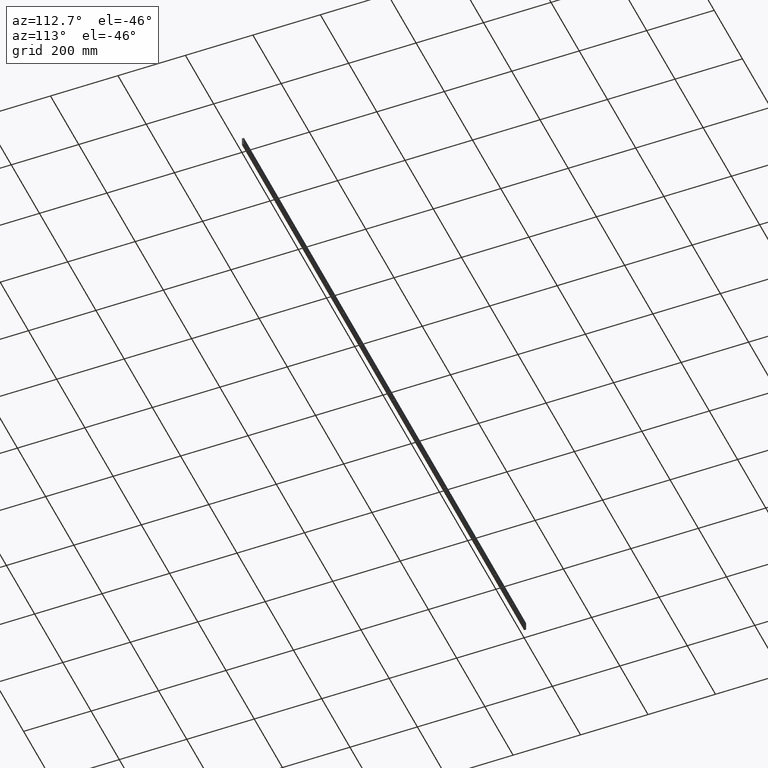
[diagram: clean part render]
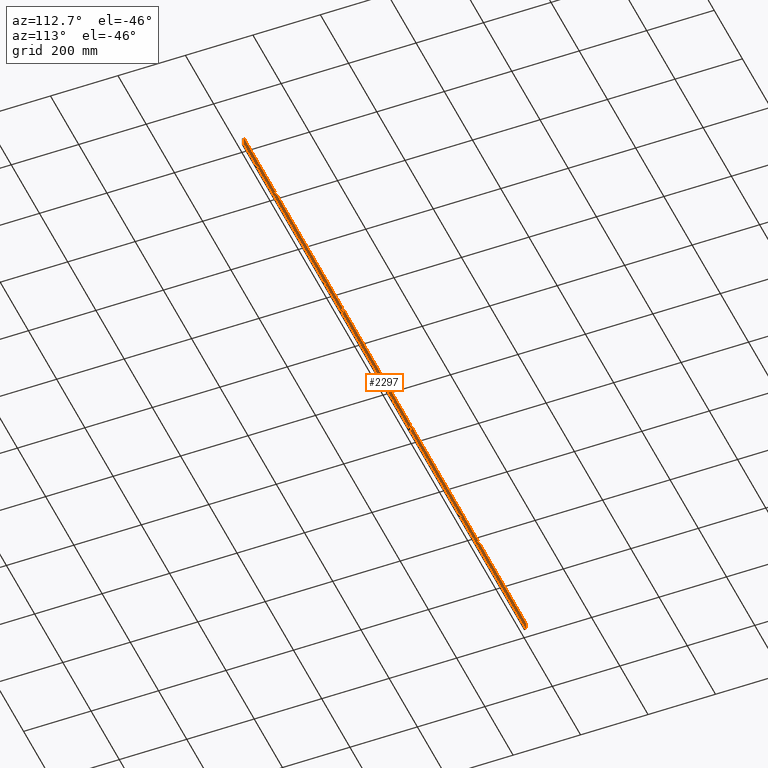
[diagram: same view with one face highlighted and labeled with its STEP entity id]
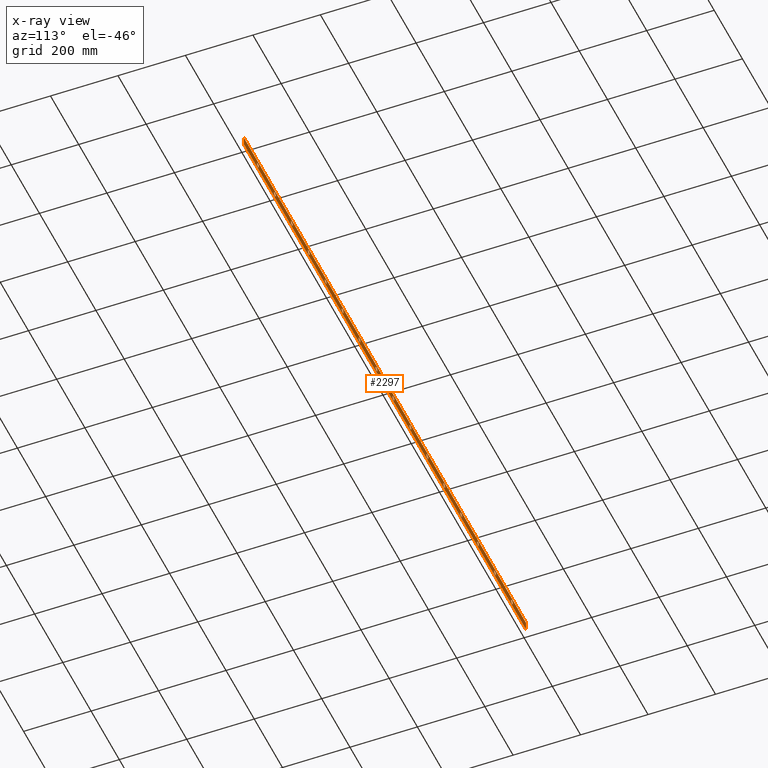
[diagram: x-ray of the same camera — body ghosted, the highlighted face saturated]
A machine part, auxiliary view. The second image highlights one B-rep face of the part: STEP entity #2297.
The next image is the same camera in x-ray: the body ghosted, the highlighted face saturated — about 0% of this face is hidden behind the body in this view.
In plain terms, the highlighted planar face has unit normal (0, -1, 0).
Its self-contained STEP definition (entity closure, byte-faithful):
#27 = FACE_BOUND ( 'NONE', #857, .T. ) ;
#46 = EDGE_CURVE ( 'NONE', #3328, #5961, #6632, .T. ) ;
#53 = VECTOR ( 'NONE', #2476, 1000.000000000000000 ) ;
#87 = DIRECTION ( 'NONE',  ( -1.000000000000000000, -0.0000000000000000000, -0.0000000000000000000 ) ) ;
#93 = VERTEX_POINT ( 'NONE', #770 ) ;
#100 = EDGE_CURVE ( 'NONE', #1768, #2930, #3909, .T. ) ;
#116 = ORIENTED_EDGE ( 'NONE', *, *, #1107, .T. ) ;
#139 = CIRCLE ( 'NONE', #4264, 6.500000000000019500 ) ;
#225 = DIRECTION ( 'NONE',  ( 0.0000000000000000000, 1.000000000000000000, 0.0000000000000000000 ) ) ;
#236 = CARTESIAN_POINT ( 'NONE',  ( 819.9999999999997700, 6.000000000000000000, -5.999999999999981300 ) ) ;
#246 = CARTESIAN_POINT ( 'NONE',  ( 0.0000000000000000000, 6.000000000000000000, -25.00000000000000000 ) ) ;
#321 = ORIENTED_EDGE ( 'NONE', *, *, #1002, .F. ) ;
#336 = DIRECTION ( 'NONE',  ( 0.0000000000000000000, 0.0000000000000000000, 1.000000000000000000 ) ) ;
#344 = DIRECTION ( 'NONE',  ( 0.0000000000000000000, 1.000000000000000000, 0.0000000000000000000 ) ) ;
#352 = CARTESIAN_POINT ( 'NONE',  ( 1059.999999999999500, 6.000000000000000000, -12.50000000000000000 ) ) ;
#370 = CARTESIAN_POINT ( 'NONE',  ( 339.9999999999998900, 6.000000000000000000, -12.50000000000000000 ) ) ;
#384 = DIRECTION ( 'NONE',  ( 0.0000000000000000000, -0.0000000000000000000, -1.000000000000000000 ) ) ;
#385 = ORIENTED_EDGE ( 'NONE', *, *, #2962, .F. ) ;
#389 = DIRECTION ( 'NONE',  ( 0.0000000000000000000, -1.000000000000000000, 0.0000000000000000000 ) ) ;
#395 = VERTEX_POINT ( 'NONE', #236 ) ;
#407 = PLANE ( 'NONE',  #5279 ) ;
#411 = DIRECTION ( 'NONE',  ( 0.0000000000000000000, 0.0000000000000000000, 1.000000000000000000 ) ) ;
#412 = DIRECTION ( 'NONE',  ( 0.0000000000000000000, 0.0000000000000000000, 1.000000000000000000 ) ) ;
#438 = AXIS2_PLACEMENT_3D ( 'NONE', #3950, #540, #4504 ) ;
#493 = EDGE_LOOP ( 'NONE', ( #2845, #1249 ) ) ;
#504 = CARTESIAN_POINT ( 'NONE',  ( 939.9999999999996600, 6.000000000000000000, -12.50000000000000000 ) ) ;
#506 = DIRECTION ( 'NONE',  ( 0.0000000000000000000, 1.000000000000000000, 0.0000000000000000000 ) ) ;
#513 = DIRECTION ( 'NONE',  ( 0.0000000000000000000, 1.000000000000000000, 0.0000000000000000000 ) ) ;
#515 = CARTESIAN_POINT ( 'NONE',  ( 0.0000000000000000000, 6.000000000000000000, 0.0000000000000000000 ) ) ;
#540 = DIRECTION ( 'NONE',  ( 0.0000000000000000000, 1.000000000000000000, 0.0000000000000000000 ) ) ;
#567 = CARTESIAN_POINT ( 'NONE',  ( 1539.999999999999500, 6.000000000000000000, -12.50000000000000000 ) ) ;
#616 = CARTESIAN_POINT ( 'NONE',  ( 219.9999999999999700, 6.000000000000000000, -5.999999999999985800 ) ) ;
#623 = EDGE_LOOP ( 'NONE', ( #5476, #4720 ) ) ;
#697 = EDGE_CURVE ( 'NONE', #1467, #6374, #5454, .T. ) ;
#730 = CIRCLE ( 'NONE', #735, 6.500000000000019500 ) ;
#735 = AXIS2_PLACEMENT_3D ( 'NONE', #1571, #1566, #1560 ) ;
#766 = EDGE_CURVE ( 'NONE', #5259, #6254, #6026, .T. ) ;
#770 = CARTESIAN_POINT ( 'NONE',  ( 1659.999999999999500, 6.000000000000000000, -18.99999999999990800 ) ) ;
#771 = CIRCLE ( 'NONE', #2661, 6.500000000000135000 ) ;
#823 = DIRECTION ( 'NONE',  ( 0.0000000000000000000, 1.000000000000000000, 0.0000000000000000000 ) ) ;
#826 = CIRCLE ( 'NONE', #2837, 6.500000000000015100 ) ;
#857 = EDGE_LOOP ( 'NONE', ( #6366, #385 ) ) ;
#884 = CARTESIAN_POINT ( 'NONE',  ( 579.9999999999998900, 6.000000000000000000, -19.00000000000002100 ) ) ;
#891 = DIRECTION ( 'NONE',  ( 0.0000000000000000000, 1.000000000000000000, 0.0000000000000000000 ) ) ;
#902 = CARTESIAN_POINT ( 'NONE',  ( 939.9999999999996600, 6.000000000000000000, -5.999999999999981300 ) ) ;
#916 = CIRCLE ( 'NONE', #438, 6.499999999999903200 ) ;
#934 = VERTEX_POINT ( 'NONE', #6029 ) ;
#955 = DIRECTION ( 'NONE',  ( 0.0000000000000000000, 0.0000000000000000000, 1.000000000000000000 ) ) ;
#975 = AXIS2_PLACEMENT_3D ( 'NONE', #3694, #3143, #3120 ) ;
#984 = CARTESIAN_POINT ( 'NONE',  ( 2000.000000000000000, 6.000000000000000000, -25.00000000000000000 ) ) ;
#1002 = EDGE_CURVE ( 'NONE', #2229, #1741, #2263, .T. ) ;
#1024 = AXIS2_PLACEMENT_3D ( 'NONE', #5821, #5816, #5815 ) ;
#1055 = VERTEX_POINT ( 'NONE', #5767 ) ;
#1084 = DIRECTION ( 'NONE',  ( 0.0000000000000000000, 0.0000000000000000000, 1.000000000000000000 ) ) ;
#1107 = EDGE_CURVE ( 'NONE', #4089, #2016, #3412, .T. ) ;
#1161 = EDGE_CURVE ( 'NONE', #1442, #3338, #5940, .T. ) ;
#1196 = FACE_BOUND ( 'NONE', #1437, .T. ) ;
#1216 = CARTESIAN_POINT ( 'NONE',  ( 1659.999999999999500, 6.000000000000000000, -12.50000000000000000 ) ) ;
#1232 = EDGE_LOOP ( 'NONE', ( #3253, #2812 ) ) ;
#1237 = AXIS2_PLACEMENT_3D ( 'NONE', #4207, #823, #4763 ) ;
#1249 = ORIENTED_EDGE ( 'NONE', *, *, #5286, .F. ) ;
#1259 = EDGE_CURVE ( 'NONE', #6254, #5259, #3998, .T. ) ;
#1310 = ORIENTED_EDGE ( 'NONE', *, *, #6931, .F. ) ;
#1311 = EDGE_CURVE ( 'NONE', #2466, #93, #6712, .T. ) ;
#1358 = CARTESIAN_POINT ( 'NONE',  ( 939.9999999999996600, 6.000000000000000000, -19.00000000000002100 ) ) ;
#1369 = FACE_BOUND ( 'NONE', #1232, .T. ) ;
#1416 = CARTESIAN_POINT ( 'NONE',  ( 1779.999999999999300, 6.000000000000000000, -5.999999999999865900 ) ) ;
#1435 = CARTESIAN_POINT ( 'NONE',  ( 1779.999999999999300, 6.000000000000000000, -12.50000000000000000 ) ) ;
#1437 = EDGE_LOOP ( 'NONE', ( #1854, #3242 ) ) ;
#1442 = VERTEX_POINT ( 'NONE', #4399 ) ;
#1467 = VERTEX_POINT ( 'NONE', #4266 ) ;
#1474 = VERTEX_POINT ( 'NONE', #4256 ) ;
#1549 = FACE_BOUND ( 'NONE', #6341, .T. ) ;
#1560 = DIRECTION ( 'NONE',  ( 0.0000000000000000000, 0.0000000000000000000, 1.000000000000000000 ) ) ;
#1563 = ORIENTED_EDGE ( 'NONE', *, *, #100, .F. ) ;
#1566 = DIRECTION ( 'NONE',  ( 0.0000000000000000000, 1.000000000000000000, 0.0000000000000000000 ) ) ;
#1571 = CARTESIAN_POINT ( 'NONE',  ( 819.9999999999997700, 6.000000000000000000, -12.50000000000000000 ) ) ;
#1630 = EDGE_CURVE ( 'NONE', #1741, #2229, #826, .T. ) ;
#1681 = ORIENTED_EDGE ( 'NONE', *, *, #2869, .F. ) ;
#1695 = EDGE_CURVE ( 'NONE', #3338, #1442, #3529, .T. ) ;
#1726 = ORIENTED_EDGE ( 'NONE', *, *, #1695, .F. ) ;
#1741 = VERTEX_POINT ( 'NONE', #3108 ) ;
#1754 = EDGE_CURVE ( 'NONE', #2016, #2578, #6234, .T. ) ;
#1768 = VERTEX_POINT ( 'NONE', #3047 ) ;
#1798 = DIRECTION ( 'NONE',  ( 0.0000000000000000000, 0.0000000000000000000, 1.000000000000000000 ) ) ;
#1854 = ORIENTED_EDGE ( 'NONE', *, *, #3309, .F. ) ;
#1937 = CARTESIAN_POINT ( 'NONE',  ( 0.0000000000000000000, 6.000000000000000000, 0.0000000000000000000 ) ) ;
#1939 = EDGE_CURVE ( 'NONE', #2930, #1768, #5738, .T. ) ;
#2008 = AXIS2_PLACEMENT_3D ( 'NONE', #6250, #3000, #4159 ) ;
#2016 = VERTEX_POINT ( 'NONE', #1937 ) ;
#2027 = DIRECTION ( 'NONE',  ( 0.0000000000000000000, 0.0000000000000000000, 1.000000000000000000 ) ) ;
#2067 = ORIENTED_EDGE ( 'NONE', *, *, #6813, .F. ) ;
#2105 = ORIENTED_EDGE ( 'NONE', *, *, #1754, .T. ) ;
#2118 = CARTESIAN_POINT ( 'NONE',  ( 1539.999999999999500, 6.000000000000000000, -6.000000000000097700 ) ) ;
#2126 = EDGE_CURVE ( 'NONE', #395, #2965, #730, .T. ) ;
#2131 = CARTESIAN_POINT ( 'NONE',  ( 1779.999999999999300, 6.000000000000000000, -12.50000000000000000 ) ) ;
#2147 = CARTESIAN_POINT ( 'NONE',  ( 699.9999999999997700, 6.000000000000000000, -5.999999999999981300 ) ) ;
#2166 = CARTESIAN_POINT ( 'NONE',  ( 2000.000000000000000, 6.000000000000000000, 0.0000000000000000000 ) ) ;
#2179 = VERTEX_POINT ( 'NONE', #984 ) ;
#2196 = DIRECTION ( 'NONE',  ( 0.0000000000000000000, 0.0000000000000000000, 1.000000000000000000 ) ) ;
#2205 = DIRECTION ( 'NONE',  ( 0.0000000000000000000, 1.000000000000000000, 0.0000000000000000000 ) ) ;
#2207 = CARTESIAN_POINT ( 'NONE',  ( 699.9999999999997700, 6.000000000000000000, -19.00000000000002100 ) ) ;
#2208 = CARTESIAN_POINT ( 'NONE',  ( 1419.999999999999500, 6.000000000000000000, -12.50000000000000000 ) ) ;
#2227 = CIRCLE ( 'NONE', #2348, 6.500000000000135000 ) ;
#2229 = VERTEX_POINT ( 'NONE', #616 ) ;
#2243 = ORIENTED_EDGE ( 'NONE', *, *, #3048, .F. ) ;
#2263 = CIRCLE ( 'NONE', #1024, 6.500000000000015100 ) ;
#2287 = CIRCLE ( 'NONE', #3297, 6.500000000000015100 ) ;
#2297 = ADVANCED_FACE ( 'NONE', ( #3087, #6145, #27, #5813, #4363, #1549, #2916, #1369, #7065, #5659, #4184, #2739, #1196, #6893, #5471, #4022, #2558 ), #407, .F. ) ;
#2305 = EDGE_CURVE ( 'NONE', #934, #3195, #5315, .T. ) ;
#2348 = AXIS2_PLACEMENT_3D ( 'NONE', #1435, #5354, #2027 ) ;
#2398 = EDGE_CURVE ( 'NONE', #2179, #4089, #4792, .T. ) ;
#2441 = EDGE_CURVE ( 'NONE', #3195, #934, #4620, .T. ) ;
#2466 = VERTEX_POINT ( 'NONE', #4893 ) ;
#2476 = DIRECTION ( 'NONE',  ( -0.0000000000000000000, -0.0000000000000000000, -1.000000000000000000 ) ) ;
#2518 = CARTESIAN_POINT ( 'NONE',  ( 1299.999999999999500, 6.000000000000000000, -12.50000000000000000 ) ) ;
#2546 = VERTEX_POINT ( 'NONE', #2147 ) ;
#2556 = ORIENTED_EDGE ( 'NONE', *, *, #4124, .F. ) ;
#2558 = FACE_BOUND ( 'NONE', #3662, .T. ) ;
#2560 = CIRCLE ( 'NONE', #3884, 6.500000000000019500 ) ;
#2578 = VERTEX_POINT ( 'NONE', #2166 ) ;
#2597 = EDGE_LOOP ( 'NONE', ( #4300, #6879 ) ) ;
#2661 = AXIS2_PLACEMENT_3D ( 'NONE', #3269, #7056, #3813 ) ;
#2669 = VERTEX_POINT ( 'NONE', #2799 ) ;
#2675 = EDGE_CURVE ( 'NONE', #1474, #1055, #2287, .T. ) ;
#2685 = DIRECTION ( 'NONE',  ( 0.0000000000000000000, 0.0000000000000000000, 1.000000000000000000 ) ) ;
#2693 = DIRECTION ( 'NONE',  ( 0.0000000000000000000, 1.000000000000000000, 0.0000000000000000000 ) ) ;
#2708 = CARTESIAN_POINT ( 'NONE',  ( 1419.999999999999500, 6.000000000000000000, -12.50000000000000000 ) ) ;
#2716 = DIRECTION ( 'NONE',  ( 0.0000000000000000000, 0.0000000000000000000, 1.000000000000000000 ) ) ;
#2739 = FACE_BOUND ( 'NONE', #5718, .T. ) ;
#2799 = CARTESIAN_POINT ( 'NONE',  ( 1299.999999999999500, 6.000000000000000000, -5.999999999999865900 ) ) ;
#2812 = ORIENTED_EDGE ( 'NONE', *, *, #1259, .F. ) ;
#2837 = AXIS2_PLACEMENT_3D ( 'NONE', #3535, #3527, #3519 ) ;
#2845 = ORIENTED_EDGE ( 'NONE', *, *, #4509, .F. ) ;
#2852 = CARTESIAN_POINT ( 'NONE',  ( 1179.999999999999800, 6.000000000000000000, -18.99999999999990800 ) ) ;
#2869 = EDGE_CURVE ( 'NONE', #6374, #1467, #4105, .T. ) ;
#2911 = EDGE_CURVE ( 'NONE', #5961, #3328, #916, .T. ) ;
#2916 = FACE_BOUND ( 'NONE', #4577, .T. ) ;
#2920 = CARTESIAN_POINT ( 'NONE',  ( 819.9999999999997700, 6.000000000000000000, -12.50000000000000000 ) ) ;
#2930 = VERTEX_POINT ( 'NONE', #7195 ) ;
#2945 = LINE ( 'NONE', #5758, #53 ) ;
#2962 = EDGE_CURVE ( 'NONE', #7087, #6060, #5073, .T. ) ;
#2965 = VERTEX_POINT ( 'NONE', #5719 ) ;
#2997 = VERTEX_POINT ( 'NONE', #1358 ) ;
#3000 = DIRECTION ( 'NONE',  ( 0.0000000000000000000, 1.000000000000000000, 0.0000000000000000000 ) ) ;
#3047 = CARTESIAN_POINT ( 'NONE',  ( 1419.999999999999500, 6.000000000000000000, -18.99999999999990800 ) ) ;
#3048 = EDGE_CURVE ( 'NONE', #2669, #5254, #3601, .T. ) ;
#3071 = DIRECTION ( 'NONE',  ( 1.000000000000000000, 0.0000000000000000000, 0.0000000000000000000 ) ) ;
#3076 = CARTESIAN_POINT ( 'NONE',  ( 0.0000000000000000000, 6.000000000000000000, 0.0000000000000000000 ) ) ;
#3078 = DIRECTION ( 'NONE',  ( 0.0000000000000000000, 0.0000000000000000000, 1.000000000000000000 ) ) ;
#3087 = FACE_BOUND ( 'NONE', #5507, .T. ) ;
#3088 = CARTESIAN_POINT ( 'NONE',  ( 1299.999999999999500, 6.000000000000000000, -19.00000000000013500 ) ) ;
#3108 = CARTESIAN_POINT ( 'NONE',  ( 219.9999999999999700, 6.000000000000000000, -19.00000000000001800 ) ) ;
#3120 = DIRECTION ( 'NONE',  ( 0.0000000000000000000, 0.0000000000000000000, 1.000000000000000000 ) ) ;
#3143 = DIRECTION ( 'NONE',  ( 0.0000000000000000000, 1.000000000000000000, 0.0000000000000000000 ) ) ;
#3173 = VECTOR ( 'NONE', #3071, 1000.000000000000000 ) ;
#3182 = CARTESIAN_POINT ( 'NONE',  ( 1899.999999999999500, 6.000000000000000000, -5.999999999999865900 ) ) ;
#3195 = VERTEX_POINT ( 'NONE', #7096 ) ;
#3206 = DIRECTION ( 'NONE',  ( 0.0000000000000000000, 1.000000000000000000, 0.0000000000000000000 ) ) ;
#3213 = CIRCLE ( 'NONE', #6080, 6.500000000000019500 ) ;
#3238 = VERTEX_POINT ( 'NONE', #2207 ) ;
#3242 = ORIENTED_EDGE ( 'NONE', *, *, #2126, .F. ) ;
#3253 = ORIENTED_EDGE ( 'NONE', *, *, #766, .F. ) ;
#3269 = CARTESIAN_POINT ( 'NONE',  ( 1899.999999999999500, 6.000000000000000000, -12.50000000000000000 ) ) ;
#3284 = ORIENTED_EDGE ( 'NONE', *, *, #5381, .F. ) ;
#3297 = AXIS2_PLACEMENT_3D ( 'NONE', #6628, #3388, #7164 ) ;
#3309 = EDGE_CURVE ( 'NONE', #2965, #395, #2560, .T. ) ;
#3328 = VERTEX_POINT ( 'NONE', #6197 ) ;
#3338 = VERTEX_POINT ( 'NONE', #6758 ) ;
#3342 = VECTOR ( 'NONE', #87, 1000.000000000000000 ) ;
#3358 = DIRECTION ( 'NONE',  ( 0.0000000000000000000, 1.000000000000000000, 0.0000000000000000000 ) ) ;
#3388 = DIRECTION ( 'NONE',  ( 0.0000000000000000000, 1.000000000000000000, 0.0000000000000000000 ) ) ;
#3390 = DIRECTION ( 'NONE',  ( 0.0000000000000000000, 0.0000000000000000000, 1.000000000000000000 ) ) ;
#3394 = DIRECTION ( 'NONE',  ( 0.0000000000000000000, 1.000000000000000000, 0.0000000000000000000 ) ) ;
#3400 = ORIENTED_EDGE ( 'NONE', *, *, #1939, .F. ) ;
#3401 = CARTESIAN_POINT ( 'NONE',  ( 459.9999999999998300, 6.000000000000000000, -12.50000000000000000 ) ) ;
#3412 = LINE ( 'NONE', #5451, #6285 ) ;
#3467 = AXIS2_PLACEMENT_3D ( 'NONE', #370, #4341, #955 ) ;
#3478 = CIRCLE ( 'NONE', #6768, 6.499999999999903200 ) ;
#3480 = DIRECTION ( 'NONE',  ( 0.0000000000000000000, 0.0000000000000000000, 1.000000000000000000 ) ) ;
#3507 = AXIS2_PLACEMENT_3D ( 'NONE', #567, #506, #411 ) ;
#3519 = DIRECTION ( 'NONE',  ( 0.0000000000000000000, 0.0000000000000000000, 1.000000000000000000 ) ) ;
#3527 = DIRECTION ( 'NONE',  ( 0.0000000000000000000, 1.000000000000000000, 0.0000000000000000000 ) ) ;
#3529 = CIRCLE ( 'NONE', #5044, 6.500000000000015100 ) ;
#3535 = CARTESIAN_POINT ( 'NONE',  ( 219.9999999999999700, 6.000000000000000000, -12.50000000000000000 ) ) ;
#3562 = ORIENTED_EDGE ( 'NONE', *, *, #5868, .F. ) ;
#3601 = CIRCLE ( 'NONE', #1237, 6.500000000000135000 ) ;
#3619 = EDGE_LOOP ( 'NONE', ( #1563, #3400 ) ) ;
#3631 = CARTESIAN_POINT ( 'NONE',  ( 100.0000000000000000, 6.000000000000000000, -19.00000000000001800 ) ) ;
#3641 = CARTESIAN_POINT ( 'NONE',  ( 1179.999999999999800, 6.000000000000000000, -6.000000000000097700 ) ) ;
#3652 = CARTESIAN_POINT ( 'NONE',  ( 1899.999999999999500, 6.000000000000000000, -12.50000000000000000 ) ) ;
#3662 = EDGE_LOOP ( 'NONE', ( #2067, #5809 ) ) ;
#3694 = CARTESIAN_POINT ( 'NONE',  ( 1059.999999999999500, 6.000000000000000000, -12.50000000000000000 ) ) ;
#3699 = AXIS2_PLACEMENT_3D ( 'NONE', #5305, #5303, #5300 ) ;
#3723 = CIRCLE ( 'NONE', #5370, 6.500000000000135000 ) ;
#3739 = ORIENTED_EDGE ( 'NONE', *, *, #2675, .F. ) ;
#3813 = DIRECTION ( 'NONE',  ( 0.0000000000000000000, 0.0000000000000000000, 1.000000000000000000 ) ) ;
#3834 = DIRECTION ( 'NONE',  ( 0.0000000000000000000, 1.000000000000000000, 0.0000000000000000000 ) ) ;
#3884 = AXIS2_PLACEMENT_3D ( 'NONE', #2920, #6715, #3480 ) ;
#3909 = CIRCLE ( 'NONE', #4216, 6.499999999999903200 ) ;
#3921 = CARTESIAN_POINT ( 'NONE',  ( 579.9999999999998900, 6.000000000000000000, -12.50000000000000000 ) ) ;
#3950 = CARTESIAN_POINT ( 'NONE',  ( 1539.999999999999500, 6.000000000000000000, -12.50000000000000000 ) ) ;
#3972 = CIRCLE ( 'NONE', #6541, 6.500000000000019500 ) ;
#3998 = CIRCLE ( 'NONE', #5532, 6.500000000000016000 ) ;
#4022 = FACE_BOUND ( 'NONE', #623, .T. ) ;
#4089 = VERTEX_POINT ( 'NONE', #4703 ) ;
#4105 = CIRCLE ( 'NONE', #5841, 6.500000000000019500 ) ;
#4124 = EDGE_CURVE ( 'NONE', #5254, #2669, #3723, .T. ) ;
#4157 = ORIENTED_EDGE ( 'NONE', *, *, #697, .F. ) ;
#4159 = DIRECTION ( 'NONE',  ( 0.0000000000000000000, 0.0000000000000000000, 1.000000000000000000 ) ) ;
#4176 = AXIS2_PLACEMENT_3D ( 'NONE', #7081, #3834, #412 ) ;
#4184 = FACE_BOUND ( 'NONE', #4392, .T. ) ;
#4194 = AXIS2_PLACEMENT_3D ( 'NONE', #6948, #6940, #6923 ) ;
#4196 = DIRECTION ( 'NONE',  ( 0.0000000000000000000, 0.0000000000000000000, 1.000000000000000000 ) ) ;
#4207 = CARTESIAN_POINT ( 'NONE',  ( 1299.999999999999500, 6.000000000000000000, -12.50000000000000000 ) ) ;
#4216 = AXIS2_PLACEMENT_3D ( 'NONE', #2708, #2693, #2685 ) ;
#4222 = CIRCLE ( 'NONE', #4458, 6.499999999999903200 ) ;
#4256 = CARTESIAN_POINT ( 'NONE',  ( 339.9999999999998900, 6.000000000000000000, -19.00000000000001800 ) ) ;
#4264 = AXIS2_PLACEMENT_3D ( 'NONE', #4281, #891, #4843 ) ;
#4266 = CARTESIAN_POINT ( 'NONE',  ( 579.9999999999998900, 6.000000000000000000, -5.999999999999981300 ) ) ;
#4280 = EDGE_CURVE ( 'NONE', #6876, #2997, #3213, .T. ) ;
#4281 = CARTESIAN_POINT ( 'NONE',  ( 699.9999999999997700, 6.000000000000000000, -12.50000000000000000 ) ) ;
#4300 = ORIENTED_EDGE ( 'NONE', *, *, #7173, .F. ) ;
#4341 = DIRECTION ( 'NONE',  ( 0.0000000000000000000, 1.000000000000000000, 0.0000000000000000000 ) ) ;
#4362 = AXIS2_PLACEMENT_3D ( 'NONE', #3652, #225, #4196 ) ;
#4363 = FACE_BOUND ( 'NONE', #2597, .T. ) ;
#4392 = EDGE_LOOP ( 'NONE', ( #3739, #1310 ) ) ;
#4399 = CARTESIAN_POINT ( 'NONE',  ( 459.9999999999998300, 6.000000000000000000, -5.999999999999985800 ) ) ;
#4405 = ORIENTED_EDGE ( 'NONE', *, *, #6600, .T. ) ;
#4458 = AXIS2_PLACEMENT_3D ( 'NONE', #6608, #3358, #7136 ) ;
#4461 = ORIENTED_EDGE ( 'NONE', *, *, #2441, .F. ) ;
#4470 = DIRECTION ( 'NONE',  ( 0.0000000000000000000, 1.000000000000000000, 0.0000000000000000000 ) ) ;
#4477 = DIRECTION ( 'NONE',  ( 0.0000000000000000000, 0.0000000000000000000, 1.000000000000000000 ) ) ;
#4504 = DIRECTION ( 'NONE',  ( 0.0000000000000000000, 0.0000000000000000000, 1.000000000000000000 ) ) ;
#4509 = EDGE_CURVE ( 'NONE', #6218, #6389, #771, .T. ) ;
#4577 = EDGE_LOOP ( 'NONE', ( #6224, #321 ) ) ;
#4620 = CIRCLE ( 'NONE', #975, 6.499999999999903200 ) ;
#4703 = CARTESIAN_POINT ( 'NONE',  ( 0.0000000000000000000, 6.000000000000000000, -25.00000000000000000 ) ) ;
#4720 = ORIENTED_EDGE ( 'NONE', *, *, #2911, .F. ) ;
#4732 = CARTESIAN_POINT ( 'NONE',  ( 100.0000000000000000, 6.000000000000000000, -5.999999999999984900 ) ) ;
#4763 = DIRECTION ( 'NONE',  ( 0.0000000000000000000, 0.0000000000000000000, 1.000000000000000000 ) ) ;
#4792 = LINE ( 'NONE', #246, #3342 ) ;
#4795 = ORIENTED_EDGE ( 'NONE', *, *, #1311, .F. ) ;
#4843 = DIRECTION ( 'NONE',  ( 0.0000000000000000000, 0.0000000000000000000, 1.000000000000000000 ) ) ;
#4869 = DIRECTION ( 'NONE',  ( 0.0000000000000000000, 0.0000000000000000000, 1.000000000000000000 ) ) ;
#4871 = DIRECTION ( 'NONE',  ( 0.0000000000000000000, 1.000000000000000000, 0.0000000000000000000 ) ) ;
#4880 = CARTESIAN_POINT ( 'NONE',  ( 1659.999999999999500, 6.000000000000000000, -12.50000000000000000 ) ) ;
#4893 = CARTESIAN_POINT ( 'NONE',  ( 1659.999999999999500, 6.000000000000000000, -6.000000000000097700 ) ) ;
#4903 = AXIS2_PLACEMENT_3D ( 'NONE', #352, #344, #336 ) ;
#4946 = AXIS2_PLACEMENT_3D ( 'NONE', #6804, #6793, #6788 ) ;
#4955 = ORIENTED_EDGE ( 'NONE', *, *, #4280, .F. ) ;
#4989 = DIRECTION ( 'NONE',  ( 0.0000000000000000000, 0.0000000000000000000, 1.000000000000000000 ) ) ;
#4991 = DIRECTION ( 'NONE',  ( 0.0000000000000000000, 1.000000000000000000, 0.0000000000000000000 ) ) ;
#4993 = CARTESIAN_POINT ( 'NONE',  ( 100.0000000000000000, 6.000000000000000000, -12.50000000000000000 ) ) ;
#5011 = CIRCLE ( 'NONE', #4176, 6.500000000000019500 ) ;
#5044 = AXIS2_PLACEMENT_3D ( 'NONE', #3401, #3394, #3390 ) ;
#5073 = CIRCLE ( 'NONE', #2008, 6.499999999999903200 ) ;
#5151 = DIRECTION ( 'NONE',  ( 0.0000000000000000000, 1.000000000000000000, 0.0000000000000000000 ) ) ;
#5254 = VERTEX_POINT ( 'NONE', #3088 ) ;
#5259 = VERTEX_POINT ( 'NONE', #3631 ) ;
#5279 = AXIS2_PLACEMENT_3D ( 'NONE', #515, #389, #384 ) ;
#5286 = EDGE_CURVE ( 'NONE', #6389, #6218, #7017, .T. ) ;
#5300 = DIRECTION ( 'NONE',  ( 0.0000000000000000000, 0.0000000000000000000, 1.000000000000000000 ) ) ;
#5303 = DIRECTION ( 'NONE',  ( 0.0000000000000000000, 1.000000000000000000, 0.0000000000000000000 ) ) ;
#5305 = CARTESIAN_POINT ( 'NONE',  ( 459.9999999999998300, 6.000000000000000000, -12.50000000000000000 ) ) ;
#5315 = CIRCLE ( 'NONE', #4903, 6.499999999999903200 ) ;
#5337 = AXIS2_PLACEMENT_3D ( 'NONE', #2131, #5971, #2716 ) ;
#5345 = EDGE_LOOP ( 'NONE', ( #3284, #4955 ) ) ;
#5347 = CIRCLE ( 'NONE', #3467, 6.500000000000015100 ) ;
#5354 = DIRECTION ( 'NONE',  ( 0.0000000000000000000, 1.000000000000000000, 0.0000000000000000000 ) ) ;
#5361 = VERTEX_POINT ( 'NONE', #1416 ) ;
#5370 = AXIS2_PLACEMENT_3D ( 'NONE', #2518, #6326, #3078 ) ;
#5381 = EDGE_CURVE ( 'NONE', #2997, #6876, #3972, .T. ) ;
#5451 = CARTESIAN_POINT ( 'NONE',  ( 0.0000000000000000000, 6.000000000000000000, 0.0000000000000000000 ) ) ;
#5454 = CIRCLE ( 'NONE', #4194, 6.500000000000019500 ) ;
#5471 = FACE_BOUND ( 'NONE', #5867, .T. ) ;
#5476 = ORIENTED_EDGE ( 'NONE', *, *, #46, .F. ) ;
#5507 = EDGE_LOOP ( 'NONE', ( #3562, #4795 ) ) ;
#5532 = AXIS2_PLACEMENT_3D ( 'NONE', #4993, #4991, #4989 ) ;
#5608 = CIRCLE ( 'NONE', #5337, 6.500000000000135000 ) ;
#5650 = DIRECTION ( 'NONE',  ( -0.0000000000000000000, -0.0000000000000000000, 1.000000000000000000 ) ) ;
#5659 = FACE_BOUND ( 'NONE', #493, .T. ) ;
#5702 = EDGE_CURVE ( 'NONE', #5361, #6230, #5608, .T. ) ;
#5718 = EDGE_LOOP ( 'NONE', ( #1681, #4157 ) ) ;
#5719 = CARTESIAN_POINT ( 'NONE',  ( 819.9999999999997700, 6.000000000000000000, -19.00000000000002100 ) ) ;
#5738 = CIRCLE ( 'NONE', #6109, 6.499999999999903200 ) ;
#5758 = CARTESIAN_POINT ( 'NONE',  ( 2000.000000000000000, 6.000000000000000000, -25.00000000000000000 ) ) ;
#5767 = CARTESIAN_POINT ( 'NONE',  ( 339.9999999999998900, 6.000000000000000000, -5.999999999999985800 ) ) ;
#5809 = ORIENTED_EDGE ( 'NONE', *, *, #5702, .F. ) ;
#5813 = FACE_BOUND ( 'NONE', #5345, .T. ) ;
#5815 = DIRECTION ( 'NONE',  ( 0.0000000000000000000, 0.0000000000000000000, 1.000000000000000000 ) ) ;
#5816 = DIRECTION ( 'NONE',  ( 0.0000000000000000000, 1.000000000000000000, 0.0000000000000000000 ) ) ;
#5821 = CARTESIAN_POINT ( 'NONE',  ( 219.9999999999999700, 6.000000000000000000, -12.50000000000000000 ) ) ;
#5841 = AXIS2_PLACEMENT_3D ( 'NONE', #3921, #513, #4477 ) ;
#5867 = EDGE_LOOP ( 'NONE', ( #2556, #2243 ) ) ;
#5868 = EDGE_CURVE ( 'NONE', #93, #2466, #3478, .T. ) ;
#5878 = AXIS2_PLACEMENT_3D ( 'NONE', #4880, #4871, #4869 ) ;
#5940 = CIRCLE ( 'NONE', #3699, 6.500000000000015100 ) ;
#5961 = VERTEX_POINT ( 'NONE', #2118 ) ;
#5971 = DIRECTION ( 'NONE',  ( 0.0000000000000000000, 1.000000000000000000, 0.0000000000000000000 ) ) ;
#6026 = CIRCLE ( 'NONE', #4946, 6.500000000000016000 ) ;
#6029 = CARTESIAN_POINT ( 'NONE',  ( 1059.999999999999500, 6.000000000000000000, -18.99999999999990800 ) ) ;
#6039 = EDGE_CURVE ( 'NONE', #6060, #7087, #4222, .T. ) ;
#6060 = VERTEX_POINT ( 'NONE', #2852 ) ;
#6080 = AXIS2_PLACEMENT_3D ( 'NONE', #504, #4470, #1084 ) ;
#6109 = AXIS2_PLACEMENT_3D ( 'NONE', #2208, #2205, #2196 ) ;
#6145 = FACE_BOUND ( 'NONE', #3619, .T. ) ;
#6197 = CARTESIAN_POINT ( 'NONE',  ( 1539.999999999999500, 6.000000000000000000, -18.99999999999990800 ) ) ;
#6201 = CARTESIAN_POINT ( 'NONE',  ( 1899.999999999999500, 6.000000000000000000, -19.00000000000013500 ) ) ;
#6218 = VERTEX_POINT ( 'NONE', #6201 ) ;
#6224 = ORIENTED_EDGE ( 'NONE', *, *, #1630, .F. ) ;
#6230 = VERTEX_POINT ( 'NONE', #6830 ) ;
#6234 = LINE ( 'NONE', #3076, #3173 ) ;
#6250 = CARTESIAN_POINT ( 'NONE',  ( 1179.999999999999800, 6.000000000000000000, -12.50000000000000000 ) ) ;
#6254 = VERTEX_POINT ( 'NONE', #4732 ) ;
#6285 = VECTOR ( 'NONE', #5650, 1000.000000000000000 ) ;
#6326 = DIRECTION ( 'NONE',  ( 0.0000000000000000000, 1.000000000000000000, 0.0000000000000000000 ) ) ;
#6341 = EDGE_LOOP ( 'NONE', ( #1726, #7163 ) ) ;
#6366 = ORIENTED_EDGE ( 'NONE', *, *, #6039, .F. ) ;
#6374 = VERTEX_POINT ( 'NONE', #884 ) ;
#6389 = VERTEX_POINT ( 'NONE', #3182 ) ;
#6450 = CARTESIAN_POINT ( 'NONE',  ( 939.9999999999996600, 6.000000000000000000, -12.50000000000000000 ) ) ;
#6462 = ORIENTED_EDGE ( 'NONE', *, *, #2305, .F. ) ;
#6515 = EDGE_LOOP ( 'NONE', ( #6462, #4461 ) ) ;
#6541 = AXIS2_PLACEMENT_3D ( 'NONE', #6450, #3206, #6992 ) ;
#6600 = EDGE_CURVE ( 'NONE', #2578, #2179, #2945, .T. ) ;
#6608 = CARTESIAN_POINT ( 'NONE',  ( 1179.999999999999800, 6.000000000000000000, -12.50000000000000000 ) ) ;
#6628 = CARTESIAN_POINT ( 'NONE',  ( 339.9999999999998900, 6.000000000000000000, -12.50000000000000000 ) ) ;
#6632 = CIRCLE ( 'NONE', #3507, 6.499999999999903200 ) ;
#6653 = ORIENTED_EDGE ( 'NONE', *, *, #2398, .T. ) ;
#6712 = CIRCLE ( 'NONE', #5878, 6.499999999999903200 ) ;
#6715 = DIRECTION ( 'NONE',  ( 0.0000000000000000000, 1.000000000000000000, 0.0000000000000000000 ) ) ;
#6758 = CARTESIAN_POINT ( 'NONE',  ( 459.9999999999998300, 6.000000000000000000, -19.00000000000001800 ) ) ;
#6768 = AXIS2_PLACEMENT_3D ( 'NONE', #1216, #5151, #1798 ) ;
#6788 = DIRECTION ( 'NONE',  ( 0.0000000000000000000, 0.0000000000000000000, 1.000000000000000000 ) ) ;
#6793 = DIRECTION ( 'NONE',  ( 0.0000000000000000000, 1.000000000000000000, 0.0000000000000000000 ) ) ;
#6804 = CARTESIAN_POINT ( 'NONE',  ( 100.0000000000000000, 6.000000000000000000, -12.50000000000000000 ) ) ;
#6813 = EDGE_CURVE ( 'NONE', #6230, #5361, #2227, .T. ) ;
#6830 = CARTESIAN_POINT ( 'NONE',  ( 1779.999999999999300, 6.000000000000000000, -19.00000000000013500 ) ) ;
#6876 = VERTEX_POINT ( 'NONE', #902 ) ;
#6879 = ORIENTED_EDGE ( 'NONE', *, *, #6985, .F. ) ;
#6893 = FACE_BOUND ( 'NONE', #6515, .T. ) ;
#6923 = DIRECTION ( 'NONE',  ( 0.0000000000000000000, 0.0000000000000000000, 1.000000000000000000 ) ) ;
#6931 = EDGE_CURVE ( 'NONE', #1055, #1474, #5347, .T. ) ;
#6940 = DIRECTION ( 'NONE',  ( 0.0000000000000000000, 1.000000000000000000, 0.0000000000000000000 ) ) ;
#6948 = CARTESIAN_POINT ( 'NONE',  ( 579.9999999999998900, 6.000000000000000000, -12.50000000000000000 ) ) ;
#6985 = EDGE_CURVE ( 'NONE', #2546, #3238, #5011, .T. ) ;
#6992 = DIRECTION ( 'NONE',  ( 0.0000000000000000000, 0.0000000000000000000, 1.000000000000000000 ) ) ;
#7017 = CIRCLE ( 'NONE', #4362, 6.500000000000135000 ) ;
#7056 = DIRECTION ( 'NONE',  ( 0.0000000000000000000, 1.000000000000000000, 0.0000000000000000000 ) ) ;
#7065 = FACE_OUTER_BOUND ( 'NONE', #7098, .T. ) ;
#7081 = CARTESIAN_POINT ( 'NONE',  ( 699.9999999999997700, 6.000000000000000000, -12.50000000000000000 ) ) ;
#7087 = VERTEX_POINT ( 'NONE', #3641 ) ;
#7096 = CARTESIAN_POINT ( 'NONE',  ( 1059.999999999999500, 6.000000000000000000, -6.000000000000097700 ) ) ;
#7098 = EDGE_LOOP ( 'NONE', ( #116, #2105, #4405, #6653 ) ) ;
#7136 = DIRECTION ( 'NONE',  ( 0.0000000000000000000, 0.0000000000000000000, 1.000000000000000000 ) ) ;
#7163 = ORIENTED_EDGE ( 'NONE', *, *, #1161, .F. ) ;
#7164 = DIRECTION ( 'NONE',  ( 0.0000000000000000000, 0.0000000000000000000, 1.000000000000000000 ) ) ;
#7173 = EDGE_CURVE ( 'NONE', #3238, #2546, #139, .T. ) ;
#7195 = CARTESIAN_POINT ( 'NONE',  ( 1419.999999999999500, 6.000000000000000000, -6.000000000000097700 ) ) ;